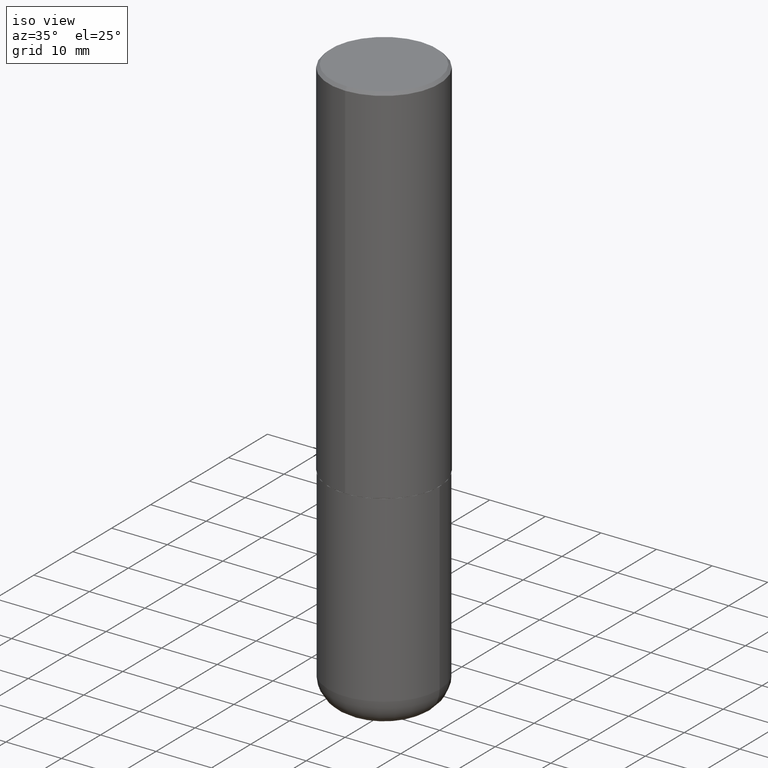
[diagram: clean part render]
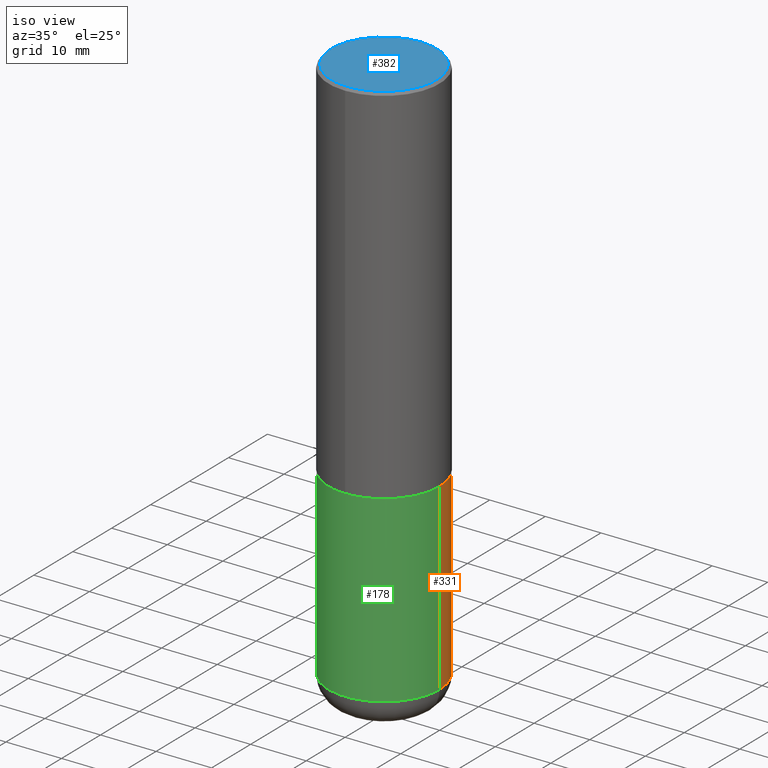
[diagram: same view with three faces highlighted in distinct colors, each labeled with its STEP entity id]
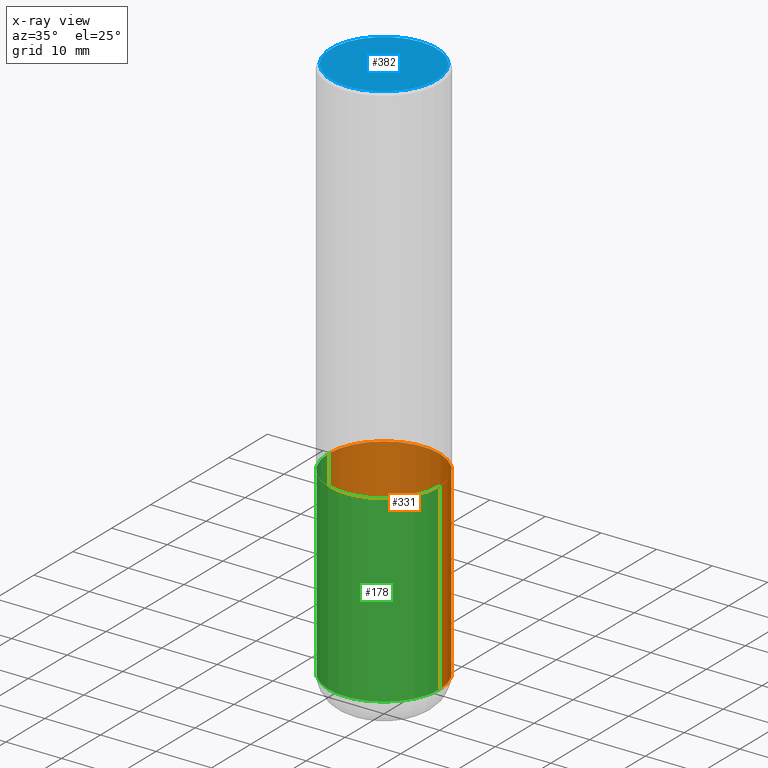
[diagram: x-ray of the same camera — body ghosted, the three highlighted faces saturated]
A machine part, iso view with three faces highlighted in distinct colors.
The next image is the same camera in x-ray (body ghosted, the three faces saturated) — at least one of them is partly hidden behind the body in this view.
Their STEP definitions:

[orange] entity #331 — the highlighted cylindrical surface (partial cylindrical patch) has radius 10 mm, axis along (-0, 0, 1).
#1 = AXIS2_PLACEMENT_3D ( 'NONE', #292, #386, #190 ) ;
#3 = DIRECTION ( 'NONE',  ( 1.000000000000000000, -6.982962677686265922E-15, 4.876176775795935793E-29 ) ) ;
#38 = CARTESIAN_POINT ( 'NONE',  ( 0.000000000000000000, 0.000000000000000000, 0.000000000000000000 ) ) ;
#39 = EDGE_CURVE ( 'NONE', #351, #402, #281, .T. ) ;
#59 = AXIS2_PLACEMENT_3D ( 'NONE', #38, #300, #3 ) ;
#62 = EDGE_CURVE ( 'NONE', #298, #402, #164, .T. ) ;
#91 = ORIENTED_EDGE ( 'NONE', *, *, #62, .F. ) ;
#102 = FACE_OUTER_BOUND ( 'NONE', #385, .T. ) ;
#113 = ORIENTED_EDGE ( 'NONE', *, *, #417, .F. ) ;
#123 = CARTESIAN_POINT ( 'NONE',  ( 0.3936999999999998279, -1.635759007248013057E-14, -3.897600000000000620 ) ) ;
#139 = LINE ( 'NONE', #305, #179 ) ;
#164 = CIRCLE ( 'NONE', #169, 0.3937000000000000499 ) ;
#165 = DIRECTION ( 'NONE',  ( -2.445468806185136597E-29, 3.491481338843145583E-15, 1.000000000000000000 ) ) ;
#169 = AXIS2_PLACEMENT_3D ( 'NONE', #416, #165, #392 ) ;
#179 = VECTOR ( 'NONE', #274, 39.37007874015748143 ) ;
#188 = CIRCLE ( 'NONE', #1, 0.3937000000000000499 ) ;
#190 = DIRECTION ( 'NONE',  ( 1.000000000000000000, -6.982962677686267499E-15, 0.000000000000000000 ) ) ;
#212 = ORIENTED_EDGE ( 'NONE', *, *, #39, .T. ) ;
#246 = ORIENTED_EDGE ( 'NONE', *, *, #277, .T. ) ;
#258 = CARTESIAN_POINT ( 'NONE',  ( -0.3936999999999998279, -1.081099091558753178E-14, -3.897600000000000620 ) ) ;
#274 = DIRECTION ( 'NONE',  ( -2.445468806185136877E-29, 3.491481338843145188E-15, 1.000000000000000000 ) ) ;
#277 = EDGE_CURVE ( 'NONE', #318, #351, #188, .T. ) ;
#281 = LINE ( 'NONE', #355, #308 ) ;
#292 = CARTESIAN_POINT ( 'NONE',  ( 9.531459218987190195E-29, -1.360839766627504578E-14, -3.897600000000000620 ) ) ;
#298 = VERTEX_POINT ( 'NONE', #322 ) ;
#300 = DIRECTION ( 'NONE',  ( -2.445468806185136597E-29, 3.491481338843145583E-15, 1.000000000000000000 ) ) ;
#305 = CARTESIAN_POINT ( 'NONE',  ( 0.3937000000000000499, -2.749192406205083217E-15, 1.919750796630860172E-29 ) ) ;
#308 = VECTOR ( 'NONE', #410, 39.37007874015748143 ) ;
#312 = CARTESIAN_POINT ( 'NONE',  ( -0.3937000000000000499, -8.542924637875024414E-15, -2.598400000000000265 ) ) ;
#318 = VERTEX_POINT ( 'NONE', #123 ) ;
#322 = CARTESIAN_POINT ( 'NONE',  ( 0.3937000000000000499, -1.182145751705511584E-14, -2.598400000000000265 ) ) ;
#331 = ADVANCED_FACE ( 'NONE', ( #102 ), #366, .T. ) ;
#351 = VERTEX_POINT ( 'NONE', #258 ) ;
#355 = CARTESIAN_POINT ( 'NONE',  ( -0.3937000000000000499, 2.797406750687514786E-15, -1.936584745033356735E-29 ) ) ;
#366 = CYLINDRICAL_SURFACE ( 'NONE', #59, 0.3937000000000000499 ) ;
#385 = EDGE_LOOP ( 'NONE', ( #246, #212, #91, #113 ) ) ;
#386 = DIRECTION ( 'NONE',  ( -2.445468806185136597E-29, 3.491481338843145583E-15, 1.000000000000000000 ) ) ;
#392 = DIRECTION ( 'NONE',  ( 1.000000000000000000, -6.982962677686267499E-15, 0.000000000000000000 ) ) ;
#402 = VERTEX_POINT ( 'NONE', #312 ) ;
#410 = DIRECTION ( 'NONE',  ( -2.445468806185136877E-29, 3.491481338843145188E-15, 1.000000000000000000 ) ) ;
#416 = CARTESIAN_POINT ( 'NONE',  ( 6.354306145991459756E-29, -9.072265110850031044E-15, -2.598400000000000265 ) ) ;
#417 = EDGE_CURVE ( 'NONE', #318, #298, #139, .T. ) ;

[blue] entity #382 — the highlighted planar face has unit normal (0, -0, -1).
#40 = PLANE ( 'NONE',  #414 ) ;
#51 = CIRCLE ( 'NONE', #247, 0.3736999999999997546 ) ;
#70 = EDGE_CURVE ( 'NONE', #228, #387, #51, .T. ) ;
#74 = ORIENTED_EDGE ( 'NONE', *, *, #256, .T. ) ;
#98 = CARTESIAN_POINT ( 'NONE',  ( -3.642432124526785739E-45, 5.196371917204674940E-31, 1.488881762060257599E-16 ) ) ;
#101 = CARTESIAN_POINT ( 'NONE',  ( -3.642432124526785739E-45, 5.196371917204674940E-31, 1.488881762060257599E-16 ) ) ;
#107 = DIRECTION ( 'NONE',  ( -6.982962677686265922E-15, -1.000000000000000000, 3.490117247466403305E-15 ) ) ;
#147 = AXIS2_PLACEMENT_3D ( 'NONE', #98, #361, #253 ) ;
#166 = CARTESIAN_POINT ( 'NONE',  ( 2.609533152651355831E-15, 0.3736999999999997546, -1.229812727275181211E-15 ) ) ;
#228 = VERTEX_POINT ( 'NONE', #409 ) ;
#247 = AXIS2_PLACEMENT_3D ( 'NONE', #101, #295, #107 ) ;
#253 = DIRECTION ( 'NONE',  ( -6.982962677686265922E-15, -1.000000000000000000, 3.490117247466403305E-15 ) ) ;
#256 = EDGE_CURVE ( 'NONE', #387, #228, #344, .T. ) ;
#295 = DIRECTION ( 'NONE',  ( -2.446421346102411128E-29, 3.490117247466403305E-15, 1.000000000000000000 ) ) ;
#329 = FACE_OUTER_BOUND ( 'NONE', #411, .T. ) ;
#332 = ORIENTED_EDGE ( 'NONE', *, *, #70, .T. ) ;
#335 = DIRECTION ( 'NONE',  ( 6.982962677686265922E-15, 1.000000000000000000, -3.490117247466403305E-15 ) ) ;
#340 = CARTESIAN_POINT ( 'NONE',  ( 2.679362779428219524E-15, 0.3736999999999997546, -1.155368639172168306E-15 ) ) ;
#344 = CIRCLE ( 'NONE', #147, 0.3736999999999997546 ) ;
#361 = DIRECTION ( 'NONE',  ( -2.446421346102411128E-29, 3.490117247466403305E-15, 1.000000000000000000 ) ) ;
#382 = ADVANCED_FACE ( 'NONE', ( #329 ), #40, .F. ) ;
#387 = VERTEX_POINT ( 'NONE', #340 ) ;
#396 = DIRECTION ( 'NONE',  ( 2.446421346102410847E-29, -3.490117247466403305E-15, -1.000000000000000000 ) ) ;
#409 = CARTESIAN_POINT ( 'NONE',  ( -2.632373081744935132E-15, -0.3736999999999997546, 1.453144991584219925E-15 ) ) ;
#411 = EDGE_LOOP ( 'NONE', ( #74, #332 ) ) ;
#414 = AXIS2_PLACEMENT_3D ( 'NONE', #166, #396, #335 ) ;

[green] entity #178 — the highlighted cylindrical surface (partial cylindrical patch) has radius 10 mm, axis along (-0, 0, 1).
#5 = ORIENTED_EDGE ( 'NONE', *, *, #417, .T. ) ;
#8 = EDGE_CURVE ( 'NONE', #402, #298, #96, .T. ) ;
#21 = CARTESIAN_POINT ( 'NONE',  ( 9.531459218987190195E-29, -1.360839766627504578E-14, -3.897600000000000620 ) ) ;
#39 = EDGE_CURVE ( 'NONE', #351, #402, #281, .T. ) ;
#83 = DIRECTION ( 'NONE',  ( 1.000000000000000000, -6.982962677686265922E-15, 4.876176775795935793E-29 ) ) ;
#96 = CIRCLE ( 'NONE', #104, 0.3937000000000000499 ) ;
#104 = AXIS2_PLACEMENT_3D ( 'NONE', #383, #218, #254 ) ;
#119 = DIRECTION ( 'NONE',  ( -2.445468806185136597E-29, 3.491481338843145583E-15, 1.000000000000000000 ) ) ;
#123 = CARTESIAN_POINT ( 'NONE',  ( 0.3936999999999998279, -1.635759007248013057E-14, -3.897600000000000620 ) ) ;
#128 = ORIENTED_EDGE ( 'NONE', *, *, #226, .T. ) ;
#134 = AXIS2_PLACEMENT_3D ( 'NONE', #21, #259, #191 ) ;
#139 = LINE ( 'NONE', #305, #179 ) ;
#141 = CARTESIAN_POINT ( 'NONE',  ( 0.000000000000000000, 0.000000000000000000, 0.000000000000000000 ) ) ;
#148 = ORIENTED_EDGE ( 'NONE', *, *, #39, .F. ) ;
#178 = ADVANCED_FACE ( 'NONE', ( #207 ), #341, .T. ) ;
#179 = VECTOR ( 'NONE', #274, 39.37007874015748143 ) ;
#191 = DIRECTION ( 'NONE',  ( 1.000000000000000000, -6.982962677686267499E-15, 0.000000000000000000 ) ) ;
#206 = ORIENTED_EDGE ( 'NONE', *, *, #8, .F. ) ;
#207 = FACE_OUTER_BOUND ( 'NONE', #316, .T. ) ;
#218 = DIRECTION ( 'NONE',  ( -2.445468806185136597E-29, 3.491481338843145583E-15, 1.000000000000000000 ) ) ;
#226 = EDGE_CURVE ( 'NONE', #351, #318, #325, .T. ) ;
#254 = DIRECTION ( 'NONE',  ( 1.000000000000000000, -6.982962677686267499E-15, 0.000000000000000000 ) ) ;
#258 = CARTESIAN_POINT ( 'NONE',  ( -0.3936999999999998279, -1.081099091558753178E-14, -3.897600000000000620 ) ) ;
#259 = DIRECTION ( 'NONE',  ( -2.445468806185136597E-29, 3.491481338843145583E-15, 1.000000000000000000 ) ) ;
#274 = DIRECTION ( 'NONE',  ( -2.445468806185136877E-29, 3.491481338843145188E-15, 1.000000000000000000 ) ) ;
#281 = LINE ( 'NONE', #355, #308 ) ;
#298 = VERTEX_POINT ( 'NONE', #322 ) ;
#302 = AXIS2_PLACEMENT_3D ( 'NONE', #141, #119, #83 ) ;
#305 = CARTESIAN_POINT ( 'NONE',  ( 0.3937000000000000499, -2.749192406205083217E-15, 1.919750796630860172E-29 ) ) ;
#308 = VECTOR ( 'NONE', #410, 39.37007874015748143 ) ;
#312 = CARTESIAN_POINT ( 'NONE',  ( -0.3937000000000000499, -8.542924637875024414E-15, -2.598400000000000265 ) ) ;
#316 = EDGE_LOOP ( 'NONE', ( #148, #128, #5, #206 ) ) ;
#318 = VERTEX_POINT ( 'NONE', #123 ) ;
#322 = CARTESIAN_POINT ( 'NONE',  ( 0.3937000000000000499, -1.182145751705511584E-14, -2.598400000000000265 ) ) ;
#325 = CIRCLE ( 'NONE', #134, 0.3937000000000000499 ) ;
#341 = CYLINDRICAL_SURFACE ( 'NONE', #302, 0.3937000000000000499 ) ;
#351 = VERTEX_POINT ( 'NONE', #258 ) ;
#355 = CARTESIAN_POINT ( 'NONE',  ( -0.3937000000000000499, 2.797406750687514786E-15, -1.936584745033356735E-29 ) ) ;
#383 = CARTESIAN_POINT ( 'NONE',  ( 6.354306145991459756E-29, -9.072265110850031044E-15, -2.598400000000000265 ) ) ;
#402 = VERTEX_POINT ( 'NONE', #312 ) ;
#410 = DIRECTION ( 'NONE',  ( -2.445468806185136877E-29, 3.491481338843145188E-15, 1.000000000000000000 ) ) ;
#417 = EDGE_CURVE ( 'NONE', #318, #298, #139, .T. ) ;